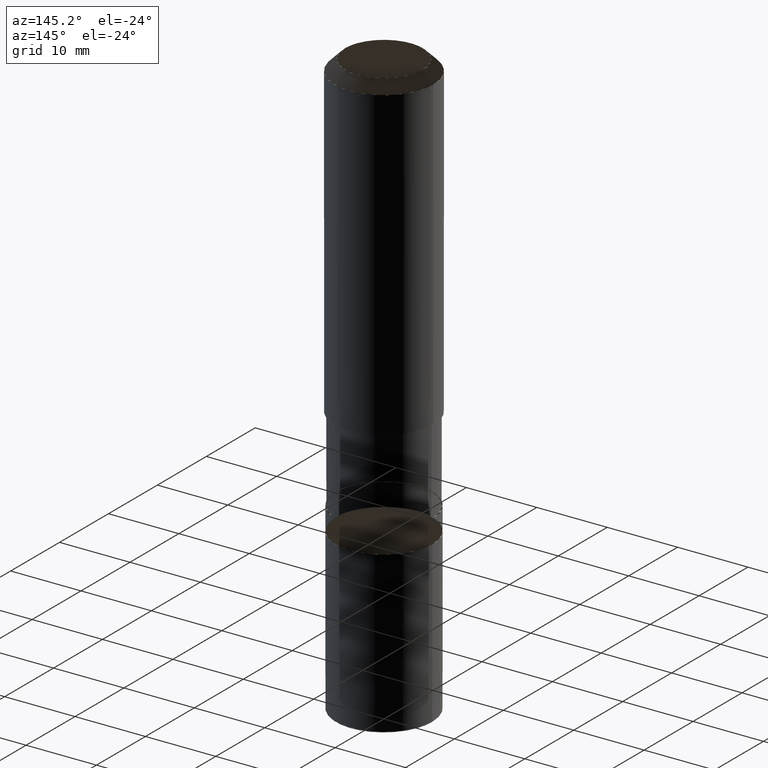
[diagram: clean part render]
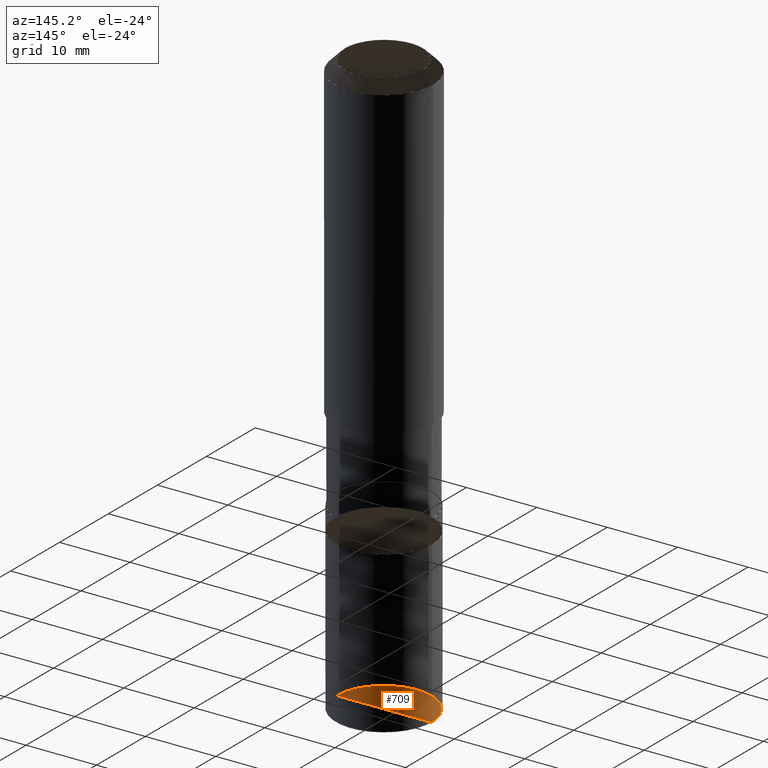
[diagram: same view with one face highlighted and labeled with its STEP entity id]
A machine part, auxiliary view. The second image highlights one B-rep face of the part: STEP entity #709.
In plain terms, the highlighted face is a freeform B-spline surface patch.
Its self-contained STEP definition (entity closure, byte-faithful):
#614=CARTESIAN_POINT('',(0.0,0.0,-38.0));
#615=CARTESIAN_POINT('',(6.75,0.0,-38.0));
#616=CARTESIAN_POINT('',(6.75,6.75,-38.0));
#617=CARTESIAN_POINT('',(0.0,6.75,-38.0));
#618=CARTESIAN_POINT('',(-6.75,6.75,-38.0));
#619=CARTESIAN_POINT('',(-6.75,0.0,-38.0));
#694=(
BOUNDED_SURFACE()
B_SPLINE_SURFACE(1,2,(
(#614,#614,#614,#614,#614),
(#615,#616,#617,#618,#619)
), .UNSPECIFIED.,.F.,.F.,.F.)
B_SPLINE_SURFACE_WITH_KNOTS((2,2),(3,2,3),(
0.0,1.0),(
0.0,0.5,1.0), .UNSPECIFIED.)
GEOMETRIC_REPRESENTATION_ITEM()
RATIONAL_B_SPLINE_SURFACE(((1.0,0.707106781187,1.0,0.707106781187,1.0),
(1.0,0.707106781187,1.0,0.707106781187,1.0)
))
REPRESENTATION_ITEM('')
SURFACE()
);
#695=(
BOUNDED_CURVE()
B_SPLINE_CURVE(1,(#619,#614),.UNSPECIFIED.,.F.,.F.)
B_SPLINE_CURVE_WITH_KNOTS((2,2),
(0.0,1.0),.UNSPECIFIED.)
CURVE()
GEOMETRIC_REPRESENTATION_ITEM()
RATIONAL_B_SPLINE_CURVE((1.0,1.0))
REPRESENTATION_ITEM('')
);
#696=(
BOUNDED_CURVE()
B_SPLINE_CURVE(1,(#614,#615),.UNSPECIFIED.,.F.,.F.)
B_SPLINE_CURVE_WITH_KNOTS((2,2),
(0.0,1.0),.UNSPECIFIED.)
CURVE()
GEOMETRIC_REPRESENTATION_ITEM()
RATIONAL_B_SPLINE_CURVE((1.0,1.0))
REPRESENTATION_ITEM('')
);
#697=(
BOUNDED_CURVE()
B_SPLINE_CURVE(2,(#615,#616,#617,#618,#619),.UNSPECIFIED.,.F.,.F.)
B_SPLINE_CURVE_WITH_KNOTS((3,2,3),
(0.0,0.5,1.0),.UNSPECIFIED.)
CURVE()
GEOMETRIC_REPRESENTATION_ITEM()
RATIONAL_B_SPLINE_CURVE((1.0,0.707106781187,1.0,0.707106781187,1.0))
REPRESENTATION_ITEM('')
);
#698=VERTEX_POINT('',#614);
#699=VERTEX_POINT('',#615);
#700=VERTEX_POINT('',#619);
#701=EDGE_CURVE('',#700,#698,#695,.T.);
#702=EDGE_CURVE('',#698,#699,#696,.T.);
#703=EDGE_CURVE('',#699,#700,#697,.T.);
#704=ORIENTED_EDGE('',*,*,#701,.T.);
#705=ORIENTED_EDGE('',*,*,#702,.T.);
#706=ORIENTED_EDGE('',*,*,#703,.T.);
#707=EDGE_LOOP('',(#704,#705,#706));
#708=FACE_OUTER_BOUND('',#707,.T.);
#709=ADVANCED_FACE('',(#708),#694,.T.);